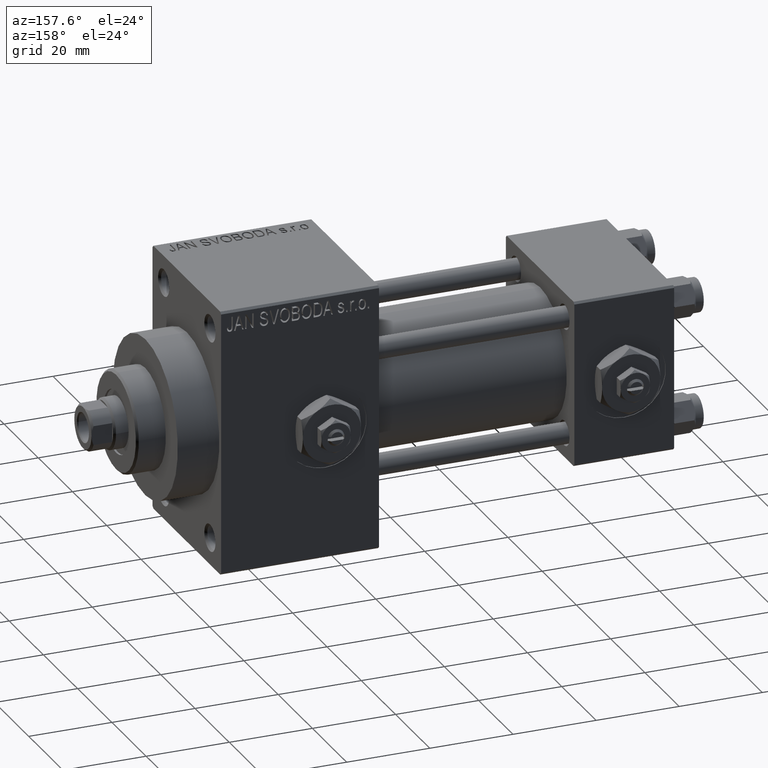
[diagram: clean part render]
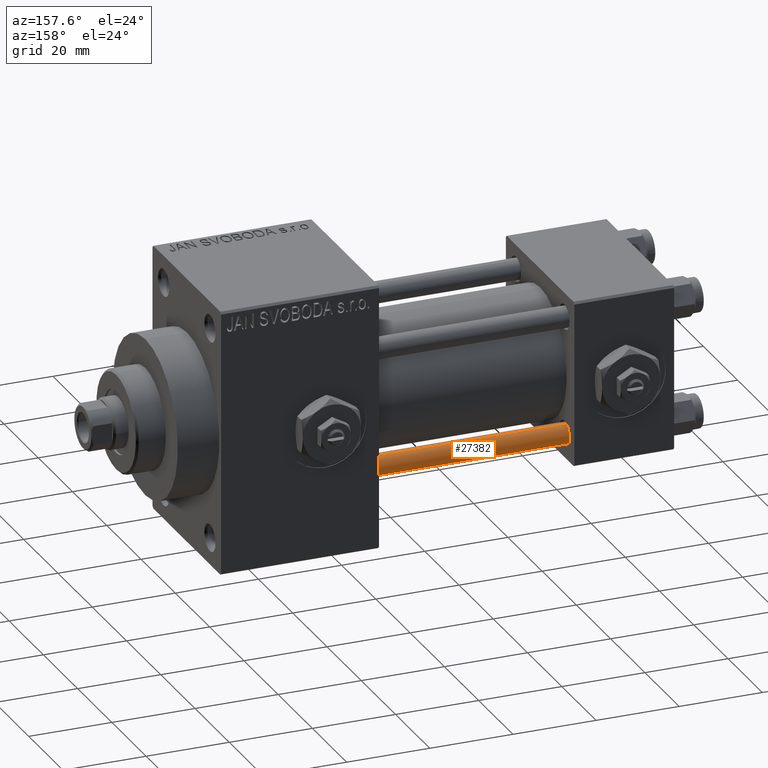
[diagram: same view with one face highlighted and labeled with its STEP entity id]
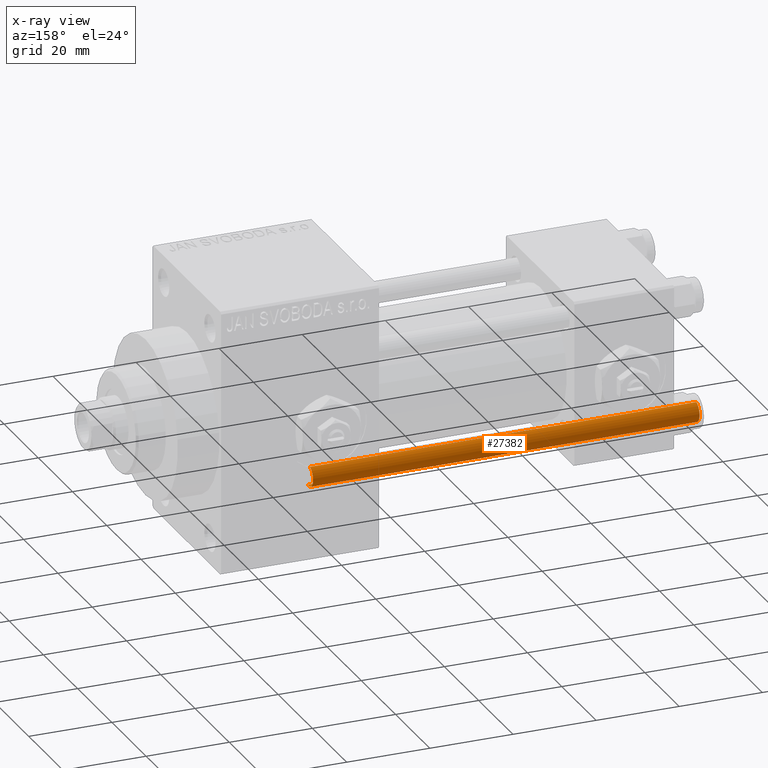
[diagram: x-ray of the same camera — body ghosted, the highlighted face saturated]
A machine part, auxiliary view. The second image highlights one B-rep face of the part: STEP entity #27382.
The next image is the same camera in x-ray: the body ghosted, the highlighted face saturated — about 0% of this face is hidden behind the body in this view.
In plain terms, the highlighted cylindrical surface (edge-blend (fillet) strip) has radius 2.5 mm, axis along (1, -0, 0).
Its self-contained STEP definition (entity closure, byte-faithful):
#678 = VECTOR ( 'NONE', #40080, 1000.000000000000000 ) ;
#3120 = CIRCLE ( 'NONE', #39545, 2.500000000000000000 ) ;
#3584 = CARTESIAN_POINT ( 'NONE',  ( 0.000000000000000000, 0.000000000000000000, 94.00000000000000000 ) ) ;
#3858 = AXIS2_PLACEMENT_3D ( 'NONE', #3584, #23150, #34077 ) ;
#3915 = DIRECTION ( 'NONE',  ( -0.000000000000000000, -0.000000000000000000, -1.000000000000000000 ) ) ;
#4200 = AXIS2_PLACEMENT_3D ( 'NONE', #9764, #47706, #42981 ) ;
#4210 = EDGE_CURVE ( 'NONE', #13905, #10392, #37876, .T. ) ;
#5780 = CIRCLE ( 'NONE', #4200, 2.500000000000000000 ) ;
#6334 = CARTESIAN_POINT ( 'NONE',  ( 2.500000000000000000, 3.061616997868383141E-16, 93.50000000000001421 ) ) ;
#7144 = VECTOR ( 'NONE', #3915, 1000.000000000000000 ) ;
#9764 = CARTESIAN_POINT ( 'NONE',  ( 0.000000000000000000, 0.000000000000000000, 93.50000000000001421 ) ) ;
#10090 = EDGE_CURVE ( 'NONE', #18960, #13905, #5780, .T. ) ;
#10392 = VERTEX_POINT ( 'NONE', #15076 ) ;
#11263 = FACE_OUTER_BOUND ( 'NONE', #19326, .T. ) ;
#11703 = CARTESIAN_POINT ( 'NONE',  ( 0.000000000000000000, 0.000000000000000000, 0.5000000000000004441 ) ) ;
#12687 = ORIENTED_EDGE ( 'NONE', *, *, #26873, .F. ) ;
#13579 = ORIENTED_EDGE ( 'NONE', *, *, #4210, .T. ) ;
#13905 = VERTEX_POINT ( 'NONE', #6334 ) ;
#15076 = CARTESIAN_POINT ( 'NONE',  ( 2.500000000000000000, 3.061616997868383141E-16, 0.5000000000000004441 ) ) ;
#16762 = LINE ( 'NONE', #24706, #678 ) ;
#18278 = CARTESIAN_POINT ( 'NONE',  ( -2.500000000000000000, 0.000000000000000000, 0.5000000000000004441 ) ) ;
#18960 = VERTEX_POINT ( 'NONE', #49064 ) ;
#19326 = EDGE_LOOP ( 'NONE', ( #39406, #13579, #41228, #12687 ) ) ;
#22607 = DIRECTION ( 'NONE',  ( -0.000000000000000000, -0.000000000000000000, 1.000000000000000000 ) ) ;
#23150 = DIRECTION ( 'NONE',  ( -0.000000000000000000, -0.000000000000000000, -1.000000000000000000 ) ) ;
#24706 = CARTESIAN_POINT ( 'NONE',  ( -2.500000000000000000, 0.000000000000000000, 94.00000000000000000 ) ) ;
#26487 = CARTESIAN_POINT ( 'NONE',  ( 2.500000000000000000, 3.061616997868383141E-16, 94.00000000000000000 ) ) ;
#26873 = EDGE_CURVE ( 'NONE', #18960, #48773, #16762, .T. ) ;
#27382 = ADVANCED_FACE ( 'NONE', ( #11263 ), #45957, .T. ) ;
#28684 = EDGE_CURVE ( 'NONE', #10392, #48773, #3120, .T. ) ;
#30557 = DIRECTION ( 'NONE',  ( 1.000000000000000000, 0.000000000000000000, 0.000000000000000000 ) ) ;
#34077 = DIRECTION ( 'NONE',  ( -1.000000000000000000, 0.000000000000000000, 0.000000000000000000 ) ) ;
#37876 = LINE ( 'NONE', #26487, #7144 ) ;
#39406 = ORIENTED_EDGE ( 'NONE', *, *, #10090, .T. ) ;
#39545 = AXIS2_PLACEMENT_3D ( 'NONE', #11703, #22607, #30557 ) ;
#40080 = DIRECTION ( 'NONE',  ( -0.000000000000000000, -0.000000000000000000, -1.000000000000000000 ) ) ;
#41228 = ORIENTED_EDGE ( 'NONE', *, *, #28684, .T. ) ;
#42981 = DIRECTION ( 'NONE',  ( 1.000000000000000000, 0.000000000000000000, 0.000000000000000000 ) ) ;
#45957 = CYLINDRICAL_SURFACE ( 'NONE', #3858, 2.500000000000000000 ) ;
#47706 = DIRECTION ( 'NONE',  ( 0.000000000000000000, 0.000000000000000000, -1.000000000000000000 ) ) ;
#48773 = VERTEX_POINT ( 'NONE', #18278 ) ;
#49064 = CARTESIAN_POINT ( 'NONE',  ( -2.500000000000000000, 0.000000000000000000, 93.50000000000001421 ) ) ;